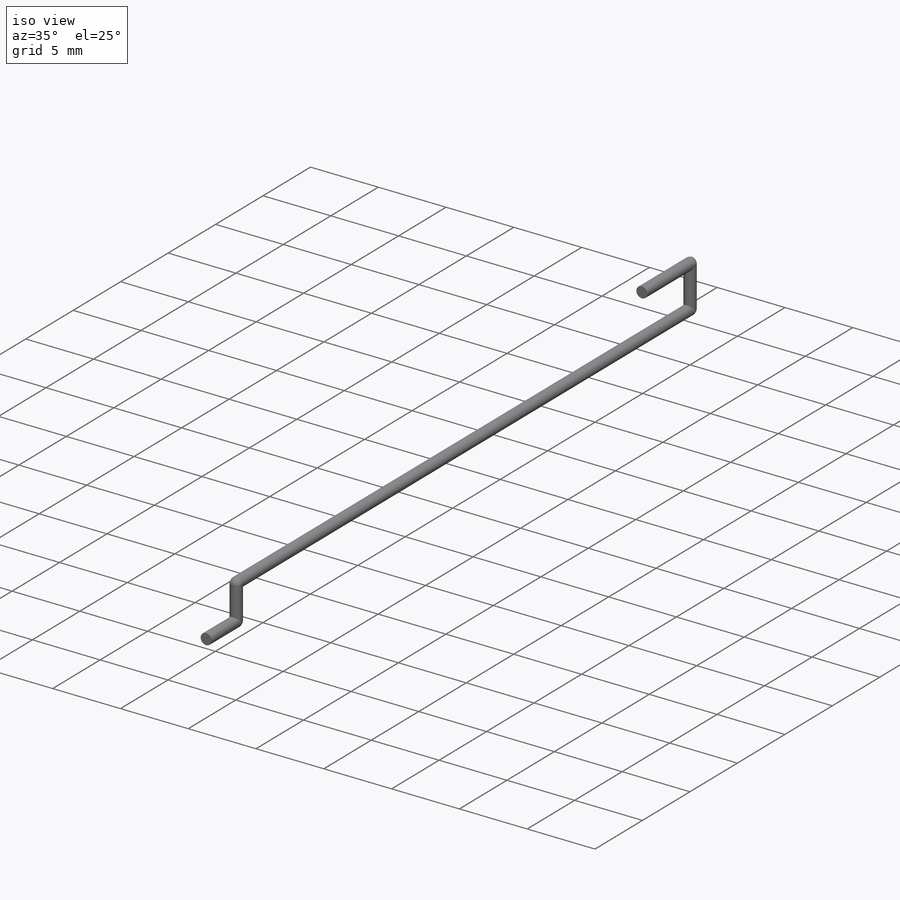
[diagram: iso view]
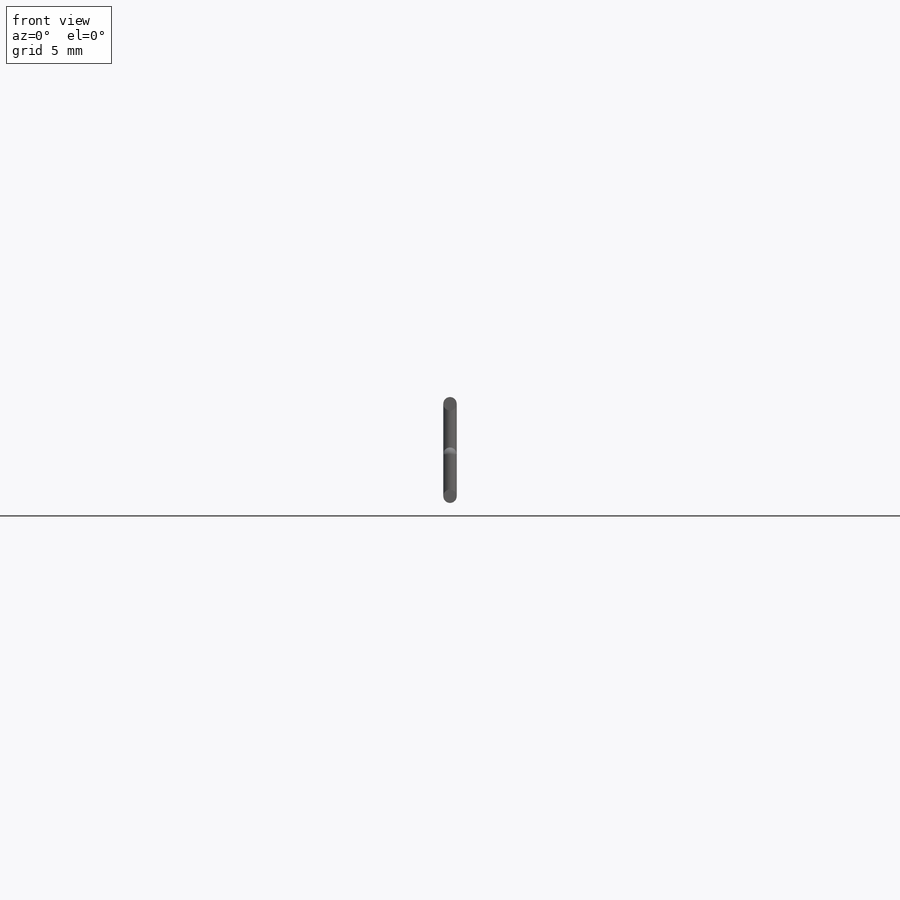
[diagram: front view]
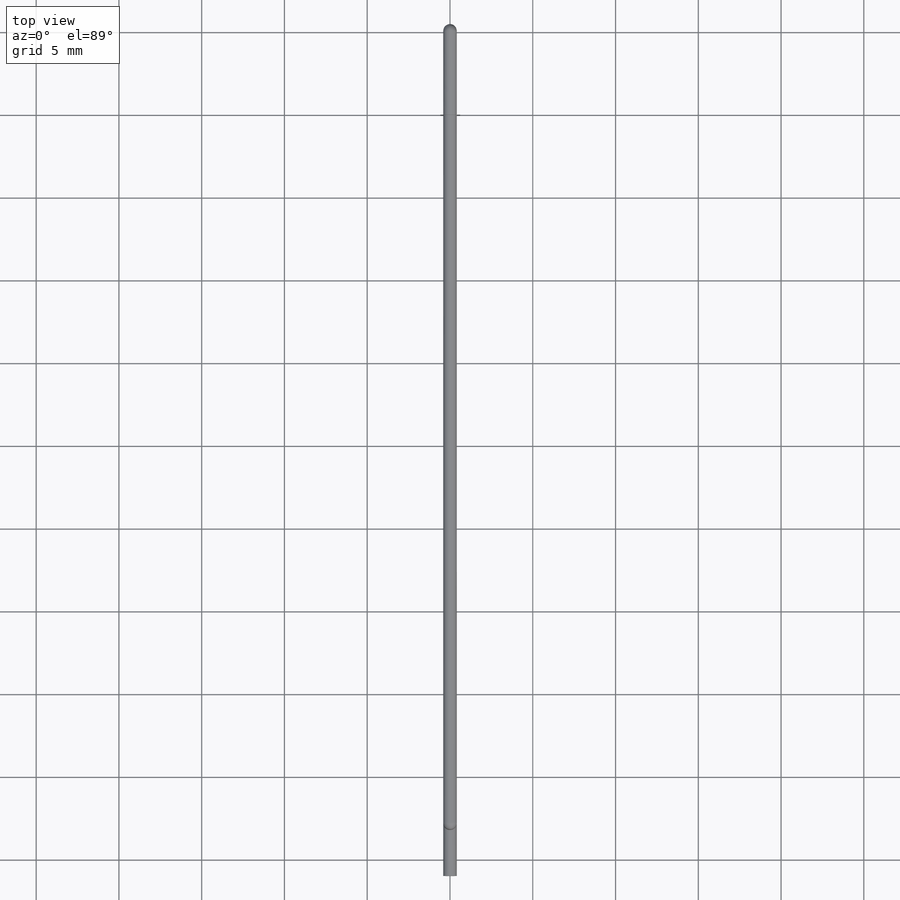
[diagram: top view]
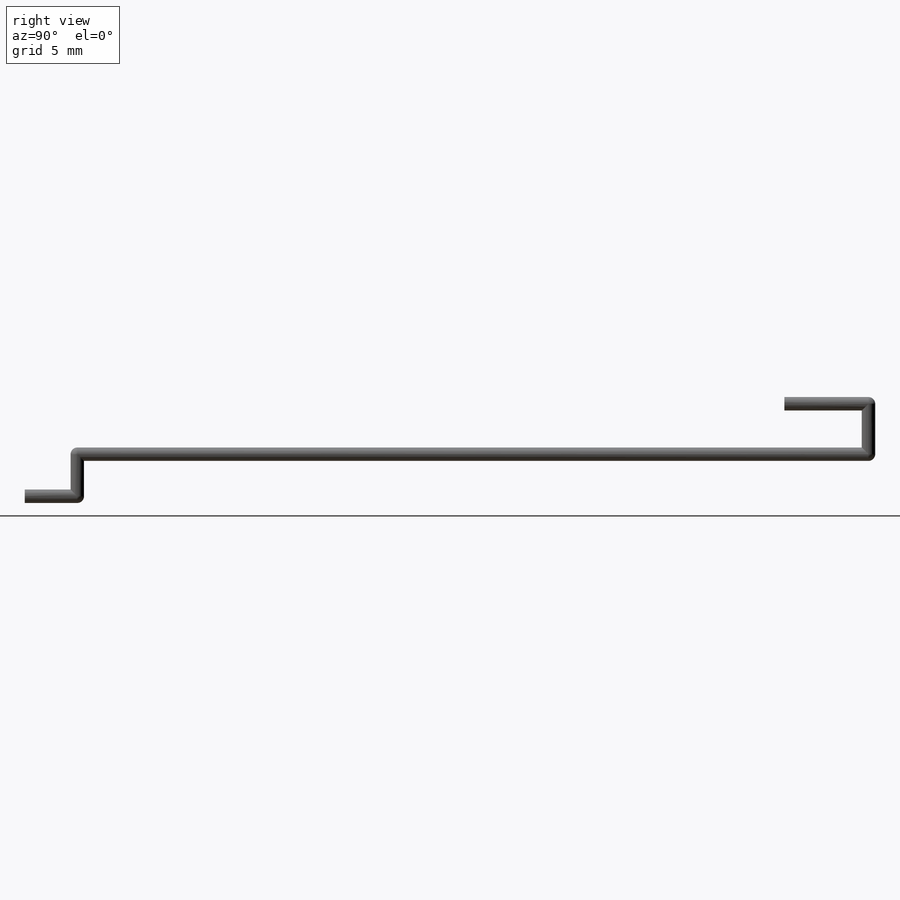
[diagram: right view]
SOLIDWORKS PART (.sldprt)
format: sldprt  version: not decoded by parser v0  size: 221,696 bytes
history: native  units: mm
features: sketch x9, extrude x8, material x1, plane x1 (+16 scaffold rows collapsed)
feature tree (35):
  scaffold x16  (default folders/planes/origin — collapsed)
  material  "Material <not specified>"
  sketch  "Sketch3"  dims[D1=0.8128mm]
  extrude  "Boss-Extrude1"  Depth=47.8028mm
  sketch  "Sketch5"
  extrude  "Boss-Extrude2"  Depth=3.048mm
  sketch  "Sketch6"
  extrude  "Boss-Extrude3"  Depth=2.54mm
  plane  "Plane1"  Offset=0mm
  sketch  "Sketch7"
  extrude  "Boss-Extrude4"  Depth=3.175mm
  sketch  "Sketch8"
  sketch  "Sketch9"
  sketch  "Sketch10"
  extrude  "Loft4"  [1 undecoded]
  sketch  "Sketch11"
  extrude  "Boss-Extrude5"  Depth=5.08mm
  sketch  "Sketch12"
  extrude  "Loft5"  [1 undecoded]
  extrude  "Loft6"  [1 undecoded]
decode coverage: 6 of 17 modeling features carry decoded parameters
note: 3 parameter values undecoded
summary: no parameter record found for 3 features
note: suppression state not decoded; provenance and decode notes live in map.json
